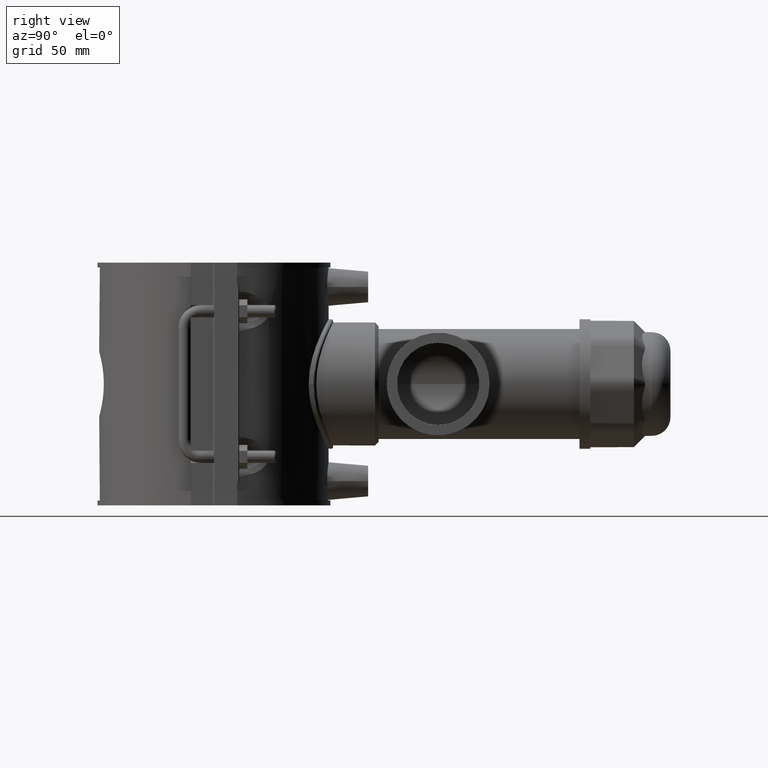
[diagram: clean part render]
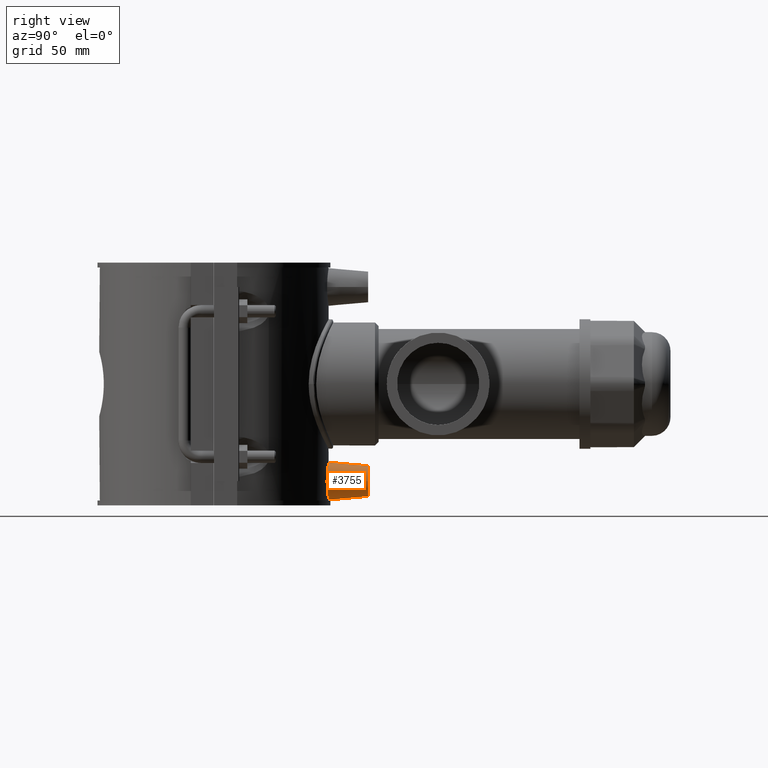
[diagram: same view with one face highlighted and labeled with its STEP entity id]
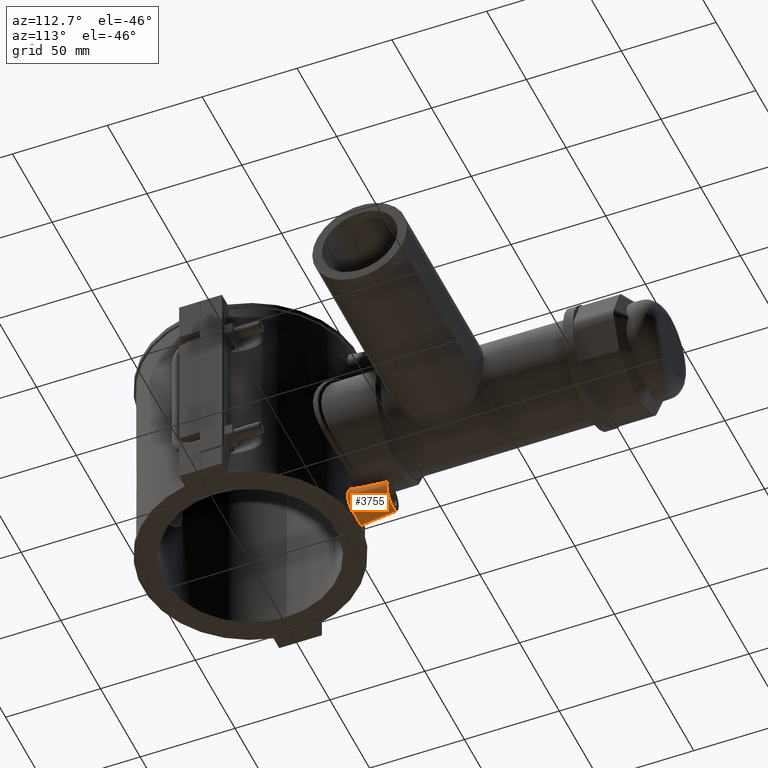
[diagram: same view with one face highlighted and labeled with its STEP entity id]
A machine part, right view. The second image highlights one B-rep face of the part: STEP entity #3755.
A second angle (auxiliary view) of the same face is appended — the face is thin or edge-on in the first view.
In plain terms, the highlighted conical surface has half-angle 5 deg.
Its self-contained STEP definition (entity closure, byte-faithful):
#661=CONICAL_SURFACE('',#4051,7.5,5.);
#701=FACE_BOUND('',#1275,.T.);
#769=B_SPLINE_CURVE_WITH_KNOTS('',3,(#6634,#6635,#6636,#6637,#6638,#6639,
#6640,#6641,#6642,#6643,#6644,#6645,#6646,#6647,#6648,#6649,#6650,#6651,
#6652,#6653,#6654,#6655,#6656,#6657,#6658,#6659,#6660,#6661,#6662,#6663,
#6664,#6665,#6666,#6667),.UNSPECIFIED.,.T.,.F.,(4,2,2,2,2,2,2,2,2,2,2,2,
2,2,2,2,4),(0.,0.348056546561925,0.69611309312385,1.04356737342671,1.39102165372956,
1.73847593403242,2.08593021433528,2.4339867608972,2.78204330745913,3.13009985402105,
3.47815640058298,3.82561068088584,4.17306496118869,4.52051924149155,4.86797352179441,
5.21603006835633,5.56408661491826),.UNSPECIFIED.);
#1011=FACE_OUTER_BOUND('',#1274,.T.);
#1274=EDGE_LOOP('',(#3012));
#1275=EDGE_LOOP('',(#3013));
#1471=CIRCLE('',#4050,7.5);
#1670=VERTEX_POINT('',#6633);
#1768=VERTEX_POINT('',#7372);
#2090=EDGE_CURVE('',#1670,#1670,#769,.T.);
#2223=EDGE_CURVE('',#1768,#1768,#1471,.T.);
#3012=ORIENTED_EDGE('',*,*,#2223,.T.);
#3013=ORIENTED_EDGE('',*,*,#2090,.F.);
#3755=ADVANCED_FACE('',(#1011,#701),#661,.T.);
#4050=AXIS2_PLACEMENT_3D('',#7373,#4787,#4788);
#4051=AXIS2_PLACEMENT_3D('',#7374,#4789,#4790);
#4787=DIRECTION('center_axis',(0.,-1.,0.));
#4788=DIRECTION('ref_axis',(1.,0.,0.));
#4789=DIRECTION('center_axis',(0.,-1.,0.));
#4790=DIRECTION('ref_axis',(1.,0.,0.));
#6633=CARTESIAN_POINT('',(9.24728629540475,55.0284262556255,-47.2));
#6634=CARTESIAN_POINT('Ctrl Pts',(9.24728629540475,55.0284262556255,-47.2));
#6635=CARTESIAN_POINT('Ctrl Pts',(9.24728629540475,55.0284262556255,-46.0398115114603));
#6636=CARTESIAN_POINT('Ctrl Pts',(9.01214330687963,55.0695247712232,-44.8048425692873));
#6637=CARTESIAN_POINT('Ctrl Pts',(8.06162809036161,55.2166771321644,-42.5386892230938));
#6638=CARTESIAN_POINT('Ctrl Pts',(7.34642811830192,55.320480575323,-41.5072870056913));
#6639=CARTESIAN_POINT('Ctrl Pts',(5.70321706832009,55.5139308795857,-39.8833192701881));
#6640=CARTESIAN_POINT('Ctrl Pts',(4.66552947400089,55.616265751875,-39.1809887441537));
#6641=CARTESIAN_POINT('Ctrl Pts',(2.3930894121168,55.7602842908542,-38.2493992541058));
#6642=CARTESIAN_POINT('Ctrl Pts',(1.15818093434286,55.8,-38.0202176603023));
#6643=CARTESIAN_POINT('Ctrl Pts',(-1.15818093434286,55.8,-38.0202176603023));
#6644=CARTESIAN_POINT('Ctrl Pts',(-2.3930894121168,55.7602842908542,-38.2493992541058));
#6645=CARTESIAN_POINT('Ctrl Pts',(-4.66552947400089,55.6162657518749,-39.1809887441537));
#6646=CARTESIAN_POINT('Ctrl Pts',(-5.70321706832009,55.5139308795857,-39.8833192701881));
#6647=CARTESIAN_POINT('Ctrl Pts',(-7.34642811830192,55.320480575323,-41.5072870056913));
#6648=CARTESIAN_POINT('Ctrl Pts',(-8.06162809036161,55.2166771321644,-42.5386892230938));
#6649=CARTESIAN_POINT('Ctrl Pts',(-9.01214330687963,55.0695247712232,-44.8048425692873));
#6650=CARTESIAN_POINT('Ctrl Pts',(-9.24728629540475,55.0284262556255,-46.0398115114603));
#6651=CARTESIAN_POINT('Ctrl Pts',(-9.24728629540475,55.0284262556255,-48.3601884885398));
#6652=CARTESIAN_POINT('Ctrl Pts',(-9.01214330687963,55.0695247712232,-49.5951574307127));
#6653=CARTESIAN_POINT('Ctrl Pts',(-8.06162809036161,55.2166771321644,-51.8613107769063));
#6654=CARTESIAN_POINT('Ctrl Pts',(-7.34642811830192,55.320480575323,-52.8927129943087));
#6655=CARTESIAN_POINT('Ctrl Pts',(-5.70321706832009,55.5139308795857,-54.5166807298119));
#6656=CARTESIAN_POINT('Ctrl Pts',(-4.66552947400089,55.616265751875,-55.2190112558464));
#6657=CARTESIAN_POINT('Ctrl Pts',(-2.39308941211679,55.7602842908542,-56.1506007458942));
#6658=CARTESIAN_POINT('Ctrl Pts',(-1.15818093434286,55.8,-56.3797823396978));
#6659=CARTESIAN_POINT('Ctrl Pts',(1.15818093434285,55.8,-56.3797823396978));
#6660=CARTESIAN_POINT('Ctrl Pts',(2.39308941211678,55.7602842908542,-56.1506007458942));
#6661=CARTESIAN_POINT('Ctrl Pts',(4.66552947400088,55.6162657518749,-55.2190112558464));
#6662=CARTESIAN_POINT('Ctrl Pts',(5.70321706832009,55.5139308795857,-54.5166807298119));
#6663=CARTESIAN_POINT('Ctrl Pts',(7.34642811830192,55.320480575323,-52.8927129943087));
#6664=CARTESIAN_POINT('Ctrl Pts',(8.06162809036161,55.2166771321644,-51.8613107769063));
#6665=CARTESIAN_POINT('Ctrl Pts',(9.01214330687963,55.0695247712232,-49.5951574307127));
#6666=CARTESIAN_POINT('Ctrl Pts',(9.24728629540475,55.0284262556255,-48.3601884885398));
#6667=CARTESIAN_POINT('Ctrl Pts',(9.24728629540475,55.0284262556255,-47.2));
#7372=CARTESIAN_POINT('',(-7.5,75.,-47.2));
#7373=CARTESIAN_POINT('Origin',(0.,75.,-47.2));
#7374=CARTESIAN_POINT('Origin',(0.,75.,-47.2));